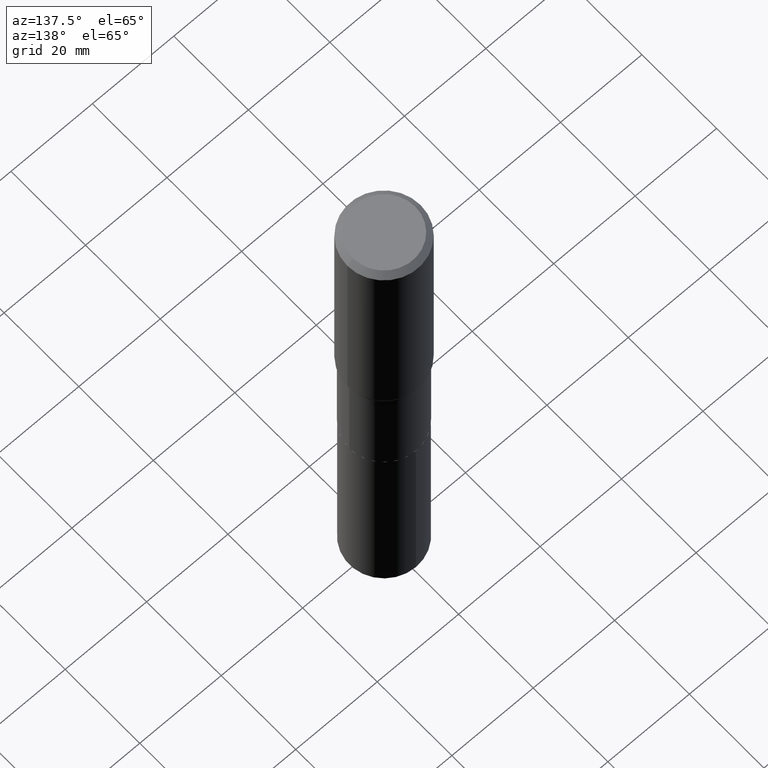
[diagram: clean part render]
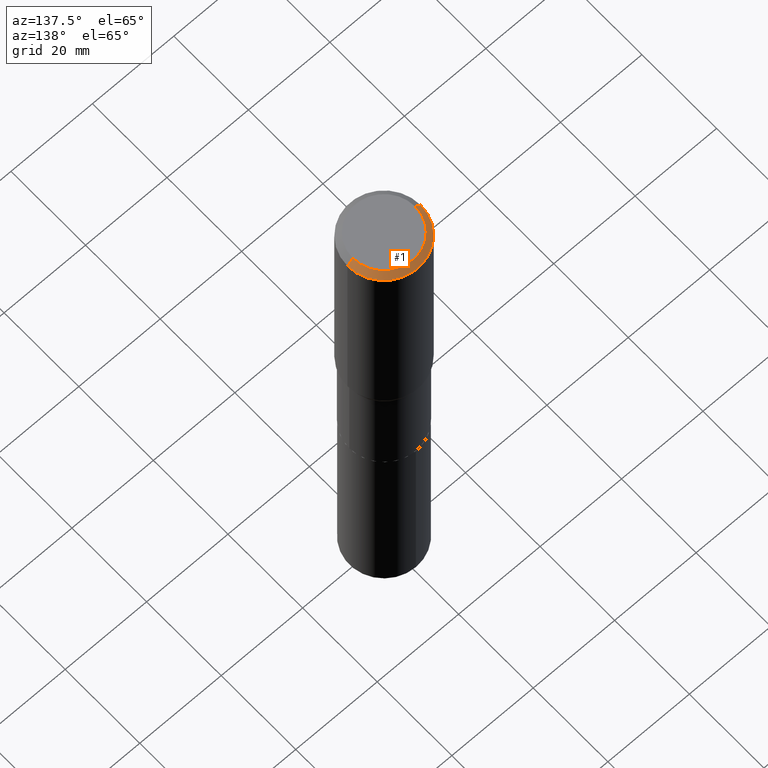
[diagram: same view with one face highlighted and labeled with its STEP entity id]
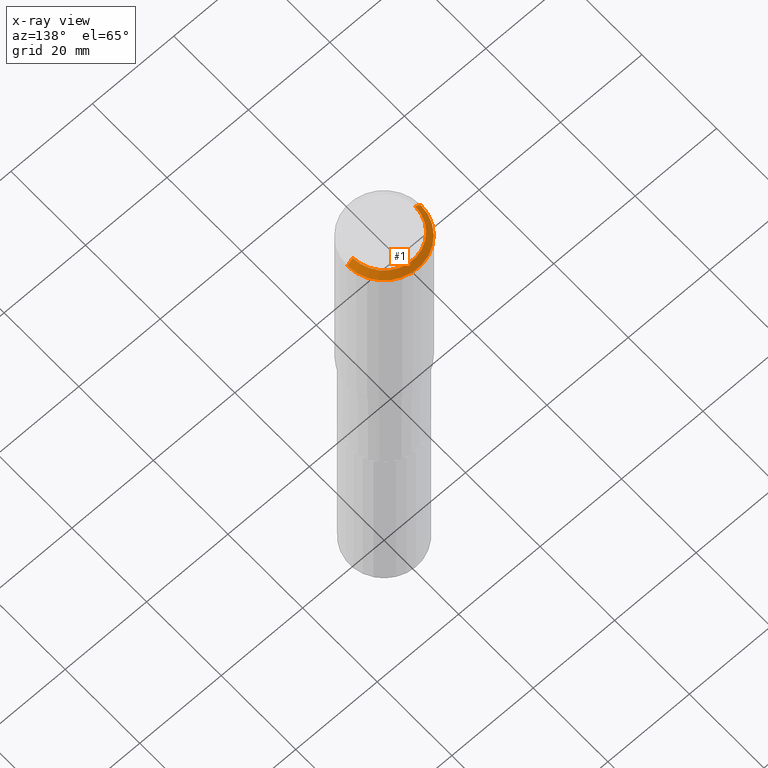
[diagram: x-ray of the same camera — body ghosted, the highlighted face saturated]
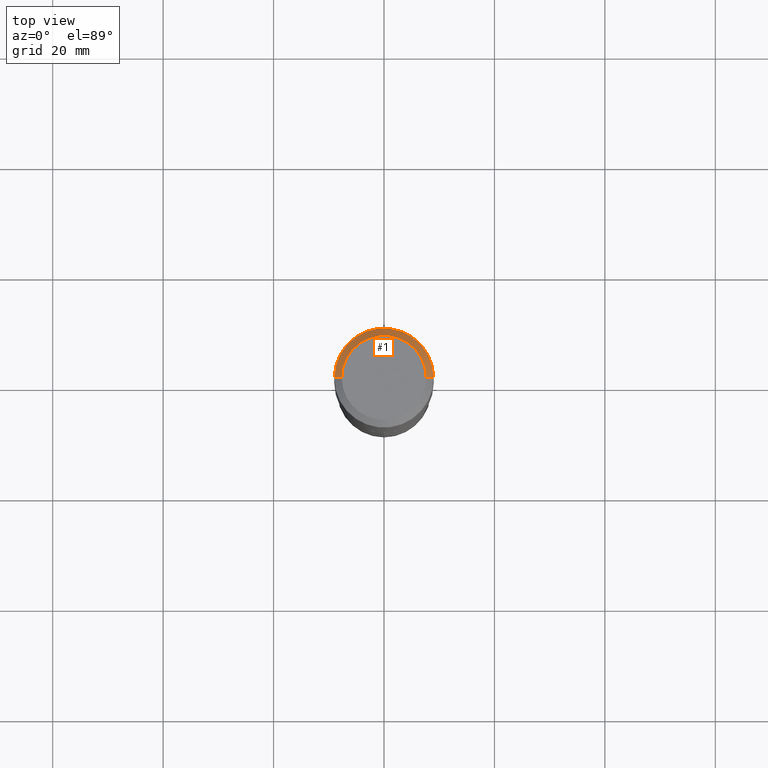
[diagram: same view with one face highlighted and labeled with its STEP entity id]
A machine part, auxiliary view. The second image highlights one B-rep face of the part: STEP entity #1.
The next image is the same camera in x-ray: the body ghosted, the highlighted face saturated — about 0% of this face is hidden behind the body in this view.
A second angle (top view) of the same face is appended — the face is thin or edge-on in the first view.
In plain terms, the highlighted conical surface has half-angle 45 deg.
Its self-contained STEP definition (entity closure, byte-faithful):
#1 = ADVANCED_FACE ( 'NONE', ( #140 ), #217, .T. ) ;
#5 = AXIS2_PLACEMENT_3D ( 'NONE', #325, #139, #431 ) ;
#16 = EDGE_CURVE ( 'NONE', #173, #46, #160, .T. ) ;
#22 = VERTEX_POINT ( 'NONE', #180 ) ;
#23 = LINE ( 'NONE', #250, #128 ) ;
#46 = VERTEX_POINT ( 'NONE', #296 ) ;
#53 = EDGE_CURVE ( 'NONE', #173, #22, #23, .T. ) ;
#82 = VECTOR ( 'NONE', #159, 39.37007874015748854 ) ;
#100 = AXIS2_PLACEMENT_3D ( 'NONE', #371, #196, #339 ) ;
#128 = VECTOR ( 'NONE', #221, 39.37007874015748854 ) ;
#138 = VERTEX_POINT ( 'NONE', #426 ) ;
#139 = DIRECTION ( 'NONE',  ( 2.445468806185136597E-29, -3.491481338843145583E-15, -1.000000000000000000 ) ) ;
#140 = FACE_OUTER_BOUND ( 'NONE', #383, .T. ) ;
#159 = DIRECTION ( 'NONE',  ( -0.7071067811865444641, 2.468850131082225506E-15, -0.7071067811865503483 ) ) ;
#160 = CIRCLE ( 'NONE', #352, 0.3011975000000000069 ) ;
#173 = VERTEX_POINT ( 'NONE', #336 ) ;
#180 = CARTESIAN_POINT ( 'NONE',  ( 0.3543499999999999983, -2.659993786700990565E-15, -0.05315250000000043551 ) ) ;
#196 = DIRECTION ( 'NONE',  ( -2.445468806185136597E-29, 3.491481338843145583E-15, 1.000000000000000000 ) ) ;
#217 = CONICAL_SURFACE ( 'NONE', #5, 0.3543499999999999983, 0.7853981633974441712 ) ;
#221 = DIRECTION ( 'NONE',  ( 0.7071067811865444641, -7.319954787623245001E-15, -0.7071067811865503483 ) ) ;
#250 = CARTESIAN_POINT ( 'NONE',  ( 0.3543499999999999983, -2.616598427373204262E-15, -0.05315250000000043551 ) ) ;
#256 = EDGE_CURVE ( 'NONE', #22, #138, #307, .T. ) ;
#273 = CARTESIAN_POINT ( 'NONE',  ( -0.3543499999999999983, 2.288831862975266823E-15, -0.05315250000000043551 ) ) ;
#282 = ORIENTED_EDGE ( 'NONE', *, *, #16, .F. ) ;
#296 = CARTESIAN_POINT ( 'NONE',  ( -0.3011975000000000069, 2.196041382043837860E-15, 4.101342130329452923E-18 ) ) ;
#299 = EDGE_CURVE ( 'NONE', #46, #138, #468, .T. ) ;
#307 = CIRCLE ( 'NONE', #100, 0.3543499999999999983 ) ;
#320 = CARTESIAN_POINT ( 'NONE',  ( -1.002970424325033577E-46, 1.431975951230896212E-32, 4.101342130344485961E-18 ) ) ;
#325 = CARTESIAN_POINT ( 'NONE',  ( 1.299827807207565248E-30, -1.855809618628617968E-16, -0.05315250000000043551 ) ) ;
#336 = CARTESIAN_POINT ( 'NONE',  ( 0.3011975000000000069, -2.341481636528497322E-15, 4.101342130360026675E-18 ) ) ;
#339 = DIRECTION ( 'NONE',  ( 1.000000000000000000, -6.982962677686266711E-15, 0.000000000000000000 ) ) ;
#348 = ORIENTED_EDGE ( 'NONE', *, *, #299, .F. ) ;
#352 = AXIS2_PLACEMENT_3D ( 'NONE', #320, #466, #394 ) ;
#371 = CARTESIAN_POINT ( 'NONE',  ( 1.299827807207565248E-30, -1.855809618628617968E-16, -0.05315250000000043551 ) ) ;
#383 = EDGE_LOOP ( 'NONE', ( #282, #414, #421, #348 ) ) ;
#394 = DIRECTION ( 'NONE',  ( 1.000000000000000000, -6.982962677686266711E-15, 4.876239486148337140E-29 ) ) ;
#414 = ORIENTED_EDGE ( 'NONE', *, *, #53, .T. ) ;
#421 = ORIENTED_EDGE ( 'NONE', *, *, #256, .T. ) ;
#426 = CARTESIAN_POINT ( 'NONE',  ( -0.3543499999999999983, -1.211807874709259447E-15, -0.05315250000000043551 ) ) ;
#431 = DIRECTION ( 'NONE',  ( -1.000000000000000000, 6.982962677686266711E-15, 0.000000000000000000 ) ) ;
#466 = DIRECTION ( 'NONE',  ( -2.445468806185136597E-29, 3.491481338843145583E-15, 1.000000000000000000 ) ) ;
#468 = LINE ( 'NONE', #273, #82 ) ;